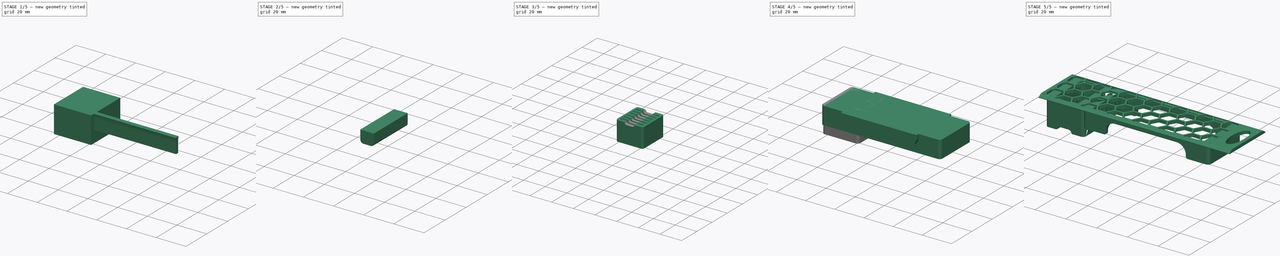
[diagram: build sequence overview — one tinted view per stage of 5, left to right]
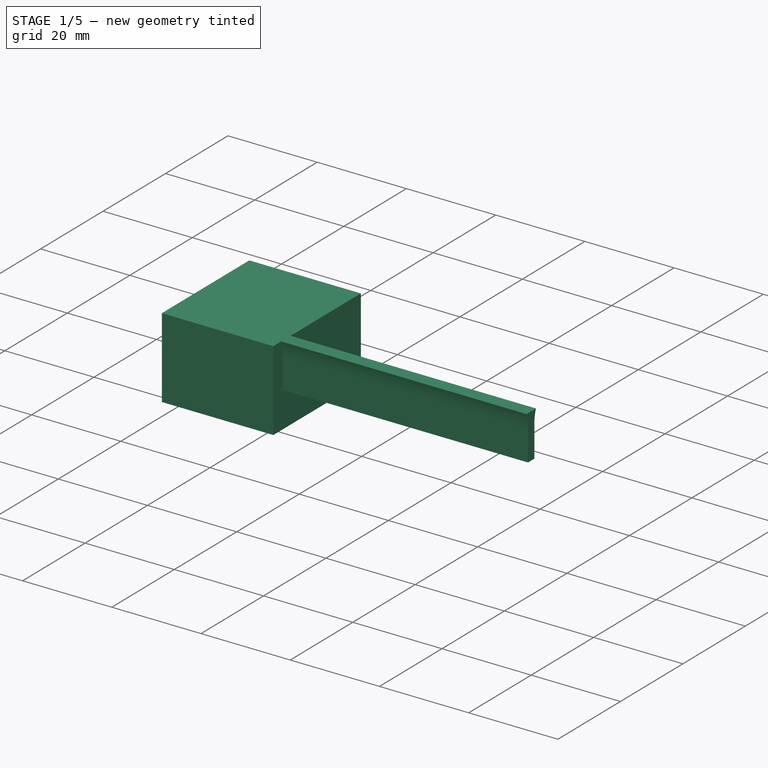
[diagram: stage 1 of 5 — iso view after this stage's code; geometry added in this stage tinted green]
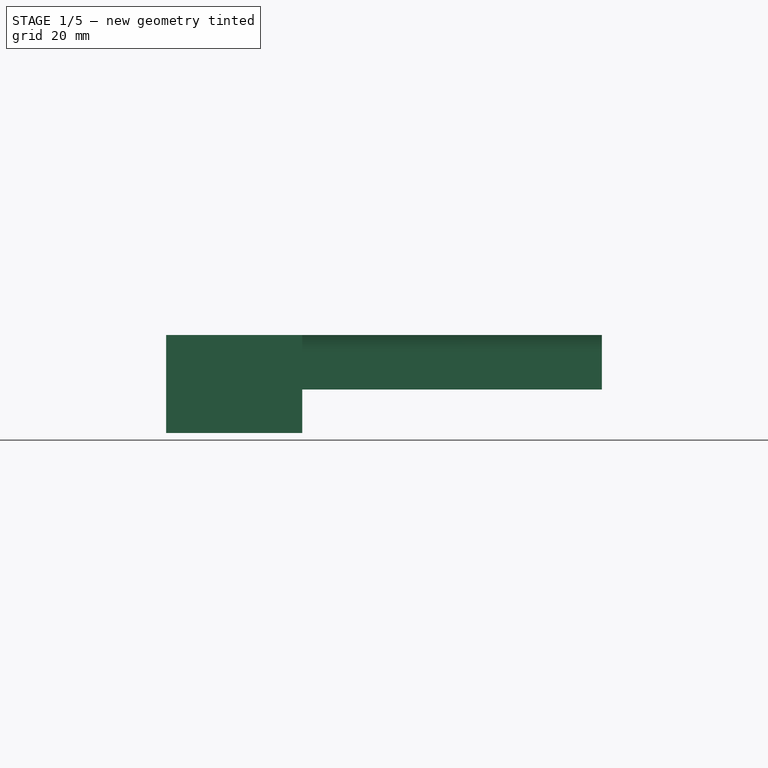
[diagram: stage 1 of 5 — front view after this stage's code; geometry added in this stage tinted green]
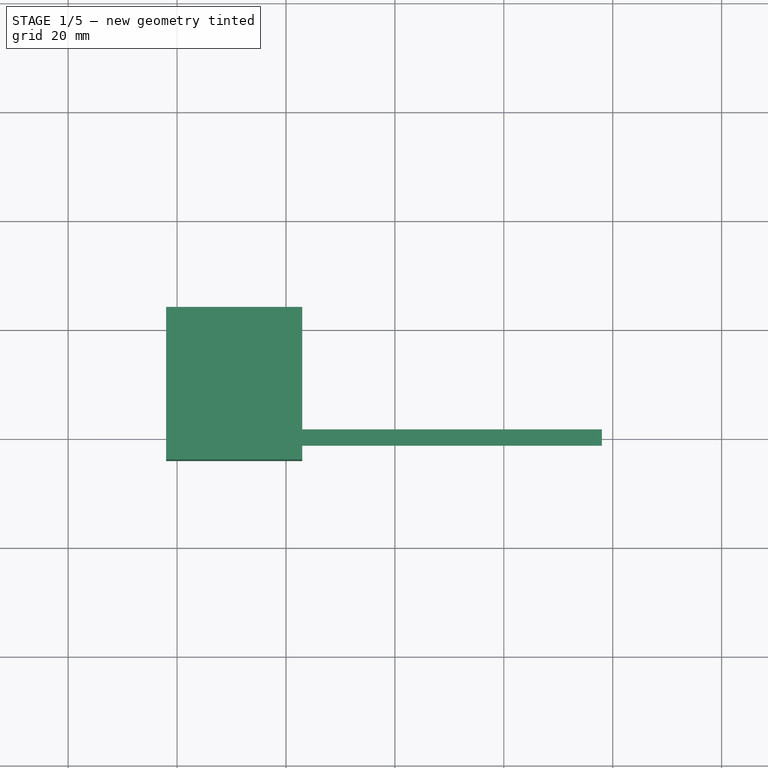
[diagram: stage 1 of 5 — top view after this stage's code; geometry added in this stage tinted green]
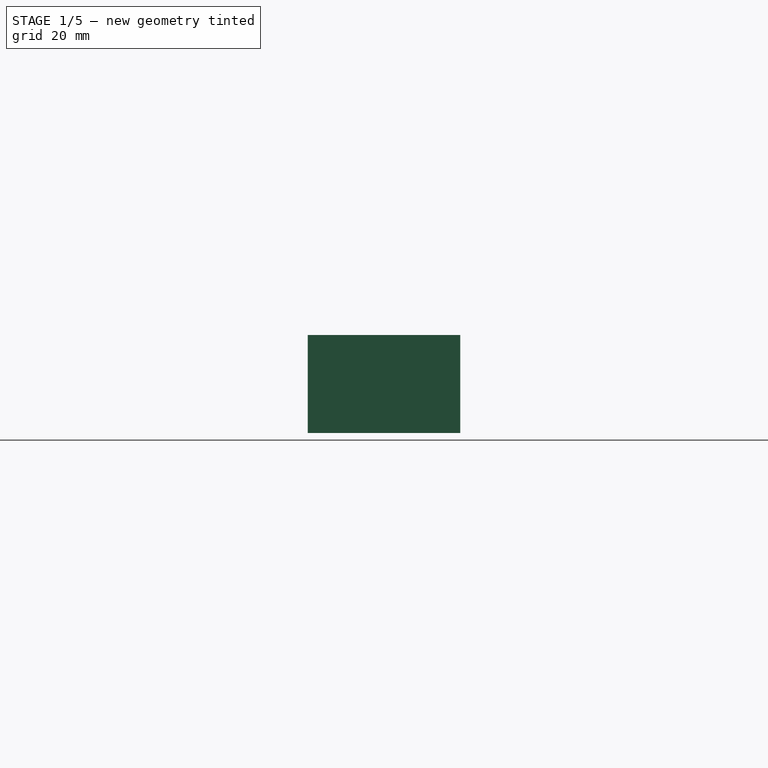
[diagram: stage 1 of 5 — right view after this stage's code; geometry added in this stage tinted green]
FCSTD DOCUMENT  (FreeCAD 0.20R29410 (Git))
Label: slide_dryer_box
License: All rights reserved
LicenseURL: http://en.wikipedia.org/wiki/All_rights_reserved
objects: Part::Box×6, Part::Fillet×6, Part::MultiFuse×3, Sketcher::SketchObject×2, PartDesign::Pad×2, PartDesign::Body×2, Part::FeaturePython×2, Part::Cut×2, App::Part×2, Part::Feature×2, Part::Compound×1
note: 28 computed .brp shape members not serialized (recipe doc carries the construction recipe); baked Part::Feature solids carry a one-line shape summary decoded from their .brp

FEATURE [Sketcher::SketchObject] Sketch  label="slide slot sketch"
  FullyConstrained = true
  MapMode = 5
  Placement = pos=(0,0,0) rot=(0.57735,0.57735,0.57735;2.0944rad)
  Support = -> [YZ_Plane]
  sketch-geometry (6):
    g0: LineSegment StartX=-1 StartY=9 StartZ=0 EndX=-1 EndY=2 EndZ=0
    g1: LineSegment StartX=1 StartY=2 StartZ=0 EndX=1 EndY=9 EndZ=0
    g2: LineSegment StartX=-1 StartY=2 StartZ=0 EndX=1 EndY=2 EndZ=0
    g3: LineSegment StartX=-1.5 StartY=12 StartZ=0 EndX=1.5 EndY=12 EndZ=0
    g4: ArcOfCircle CenterX=-10.25 CenterY=9 CenterZ=0 NormalX=0 NormalY=0 NormalZ=1 AngleXU=0 Radius=9.25 StartAngle=-1.8e-15 EndAngle=0.330297
    g5: ArcOfCircle CenterX=10.25 CenterY=9 CenterZ=0 NormalX=0 NormalY=0 NormalZ=1 AngleXU=0 Radius=9.25 StartAngle=2.8113 EndAngle=3.14159
  constraints (15):
    c: Vertical(g0)
    c: Coincident(g2,g0)
    c: Coincident(g2,g1)
    c: Coincident(g4,g3)
    c: Coincident(g5,g3)
    c: Tangent(g5,g1) = 1.5708
    c: Tangent(g4,g0) = 1.5708
    c: Symmetric(g3,g3,g-2)
    c: Symmetric(g1,g0,g-2)
    c: Symmetric(g1,g0,g-2)
    c: DistanceX(g2,g2) = 2
    c: DistanceY(g0,g3) = 10  'slide_slot_height'
    c: DistanceY(g-1,g1) = 2  'slide_slot_shift_up'
    c: DistanceX(g3,g3) = 3
    c: DistanceY(g0,g0) = 7
FEATURE [PartDesign::Pad] Pad  label="slide slot pad"
  Direction = (1,-2e-16,3e-16)
  Length = 78
  Length2 = 10
  Placement = pos=(0,0,0) rot=(0.57735,0.57735,0.57735;2.0944rad)
  Profile = -> Sketch
  ReferenceAxis = -> Sketch [N_Axis]
  Type = 0
FEATURE [Part::Box] Box003  label="cover external cube"
  AttacherType = Attacher::AttachEngine3D
  Height = 18
  Length = 25
  Placement = pos=(-2,-4,-6) rot=(0,0,1;0rad)
  Width = 28
  expr: .Placement.Base.z = -6
  expr: Height = <<cover slot sketch>>.Constraints.slide_slot_height + <<cover slot sketch>>.Constraints.slide_slot_shift_up + 6mm
  expr: Length = <<cover slot pad>>.Length + 4mm
  expr: Width = <<cover slot array>>.NumberY * <<cover slot array>>.IntervalY.y + 4mm
FEATURE [Sketcher::SketchObject] Sketch001  label="cover slot sketch"
  FullyConstrained = true
  MapMode = 5
  Placement = pos=(0,0,0) rot=(0.57735,0.57735,0.57735;2.0944rad)
  Support = -> [YZ_Plane001]
  sketch-geometry (6):
    g0: LineSegment StartX=-0.7 StartY=9 StartZ=0 EndX=-0.7 EndY=2 EndZ=0
    g1: LineSegment StartX=0.7 StartY=2 StartZ=0 EndX=0.7 EndY=9 EndZ=0
    g2: LineSegment StartX=-0.7 StartY=2 StartZ=0 EndX=0.7 EndY=2 EndZ=0
    g3: LineSegment StartX=-1 StartY=12 StartZ=0 EndX=1 EndY=12 EndZ=0
    g4: ArcOfCircle CenterX=-15.85 CenterY=9 CenterZ=0 NormalX=0 NormalY=0 NormalZ=1 AngleXU=0 Radius=15.15 StartAngle=1e-16 EndAngle=0.199337
    g5: ArcOfCircle CenterX=15.85 CenterY=9 CenterZ=0 NormalX=0 NormalY=0 NormalZ=1 AngleXU=0 Radius=15.15 StartAngle=2.94226 EndAngle=3.14159
  constraints (15):
    c: Vertical(g0)
    c: Coincident(g2,g0)
    c: Coincident(g2,g1)
    c: Coincident(g4,g3)
    c: Coincident(g5,g3)
    c: Tangent(g5,g1) = 1.5708
    c: Tangent(g4,g0) = 1.5708
    c: Symmetric(g3,g3,g-2)
    c: Symmetric(g1,g0,g-2)
    c: Symmetric(g1,g0,g-2)
    c: DistanceX(g2,g2) = 1.4
    c: DistanceY(g0,g3) = 10  'slide_slot_height'
    c: DistanceY(g-1,g1) = 2  'slide_slot_shift_up'
    c: DistanceX(g3,g3) = 2
    c: DistanceY(g0,g0) = 7
FEATURE [PartDesign::Pad] Pad001  label="cover slot pad"
  Direction = (1,-2e-16,3e-16)
  Length = 21
  Length2 = 10
  Placement = pos=(0,0,0) rot=(0.57735,0.57735,0.57735;2.0944rad)
  Profile = -> Sketch001
  ReferenceAxis = -> Sketch001 [N_Axis]
  Type = 0
FEATURE [PartDesign::Body] Body001  label="slide slot body001"
  Group = -> [Sketch001,Pad001]
  Origin = -> Origin001
  Tip = -> Pad001
FEATURE [Part::FeaturePython] Array001  label="cover slot array"  # Draft array (typed FeaturePython)
  AlwaysSyncPlacement = false
  Angle = 360
  ArrayType = 0
  Axis = (0,0,1)
  Base = -> Body001
  Center = (0,0,0)
  Count = 6
  ExpandArray = false
  Fuse = false
  IntervalAxis = (0,0,0)
  IntervalX = (100,0,0)
  IntervalY = (0,4,0)
  IntervalZ = (0,0,100)
  NumberCircles = 3
  NumberPolar = 5
  NumberX = 1
  NumberY = 6
  NumberZ = 1
  PlacementList = 6 placements: arithmetic series from (0,0,0) step (0,4,0) to (0,20,0)
  RadialDistance = 50
  ScaleList = (6) [(1,1,1),(1,1,1),(1,1,1),(1,1,1),(1,1,1),(1,1,1)]
  Symmetry = 1
  TangentialDistance = 25
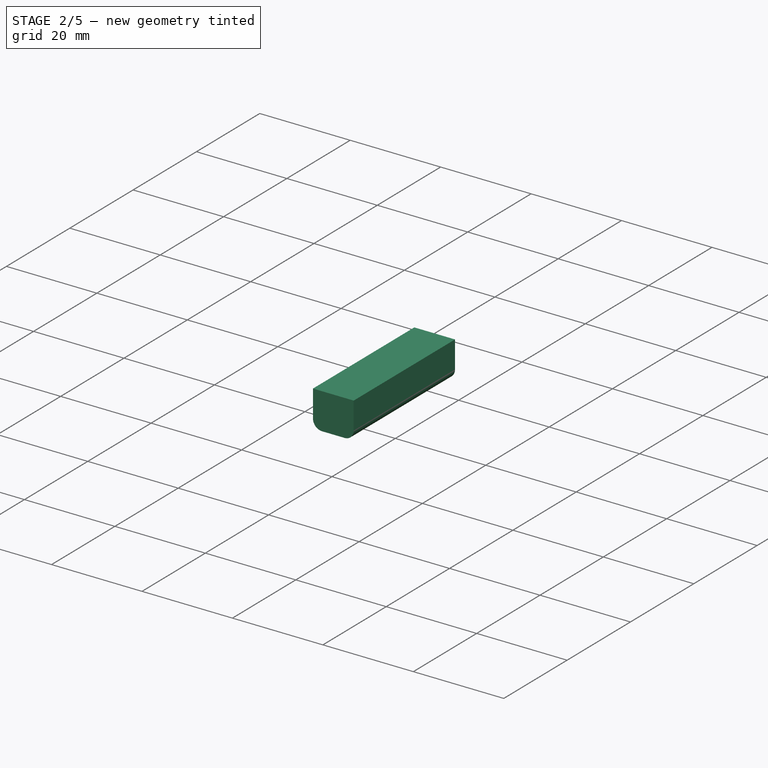
[diagram: stage 2 of 5 — iso view after this stage's code; geometry added in this stage tinted green]
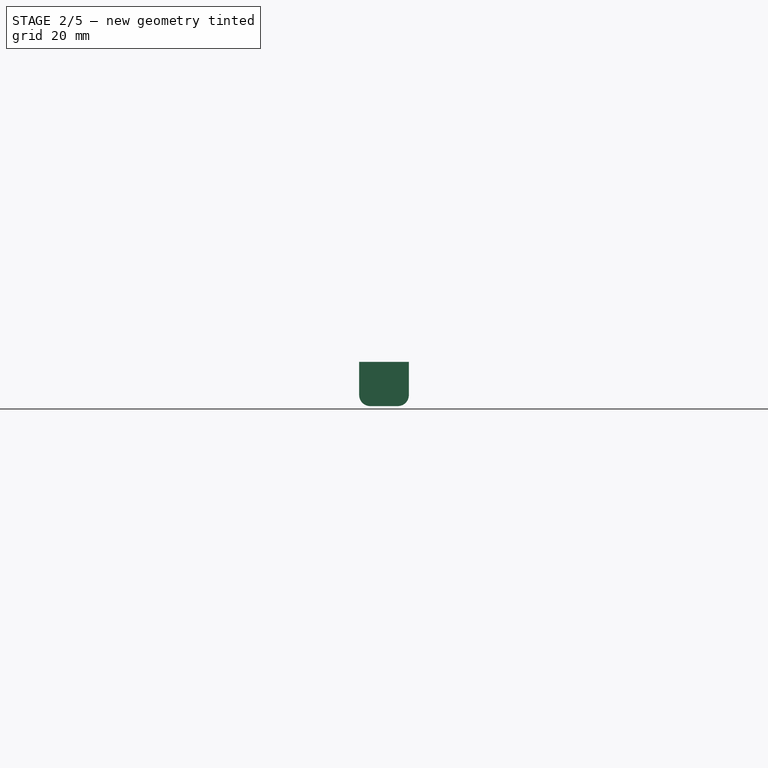
[diagram: stage 2 of 5 — front view after this stage's code; geometry added in this stage tinted green]
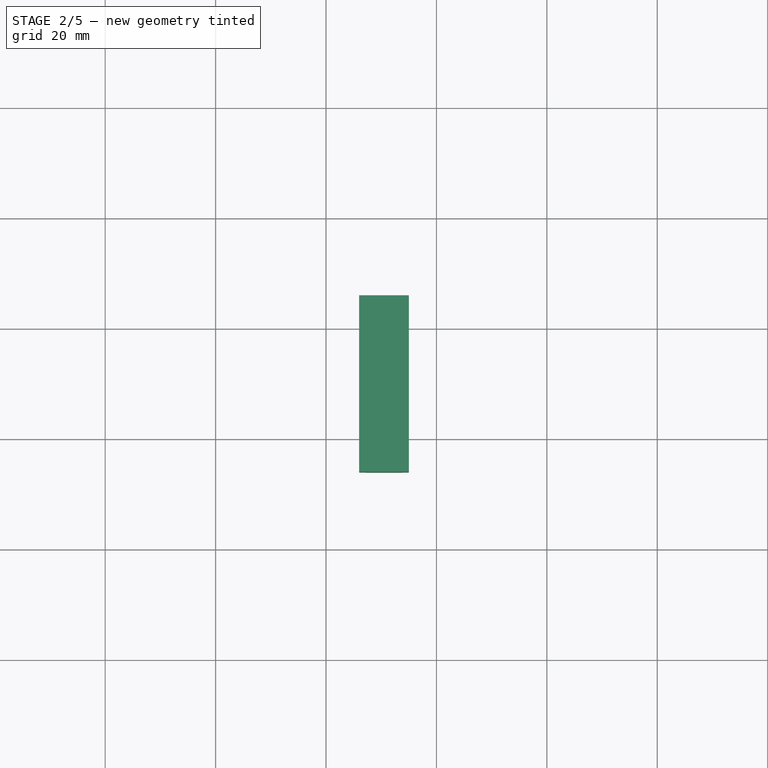
[diagram: stage 2 of 5 — top view after this stage's code; geometry added in this stage tinted green]
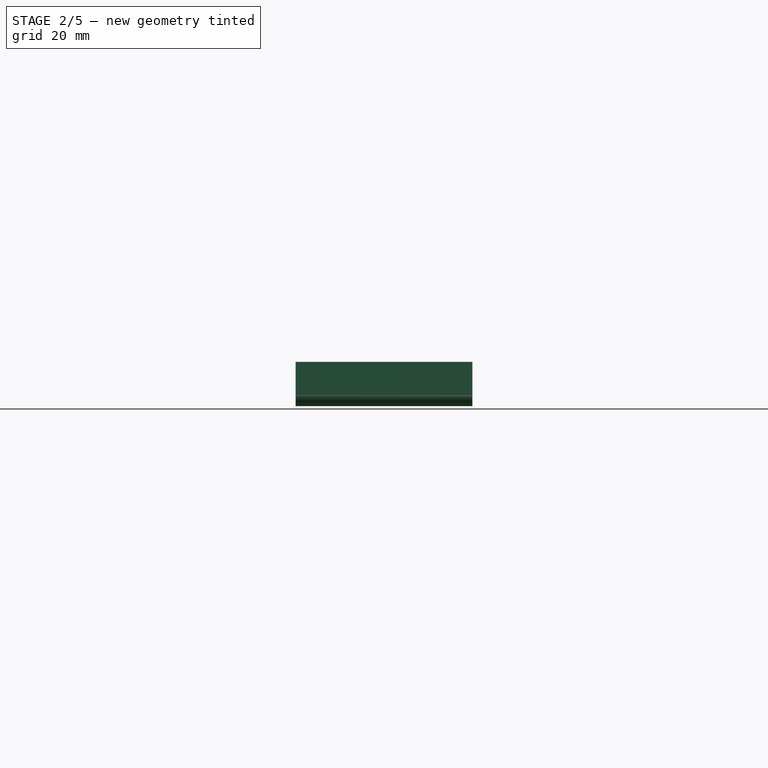
[diagram: stage 2 of 5 — right view after this stage's code; geometry added in this stage tinted green]
FEATURE [PartDesign::Body] Body  label="slide slot body"
  Group = -> [Sketch,Pad]
  Origin = -> Origin
  Tip = -> Pad
FEATURE [Part::FeaturePython] Array  label="slide slot array"  # Draft array (typed FeaturePython)
  AlwaysSyncPlacement = false
  Angle = 360
  ArrayType = 0
  Axis = (0,0,1)
  Base = -> Body
  Center = (0,0,0)
  Count = 6
  ExpandArray = false
  Fuse = false
  IntervalAxis = (0,0,0)
  IntervalX = (100,0,0)
  IntervalY = (0,4,0)
  IntervalZ = (0,0,100)
  NumberCircles = 3
  NumberPolar = 5
  NumberX = 1
  NumberY = 6
  NumberZ = 1
  PlacementList = 6 placements: arithmetic series from (0,0,0) step (0,4,0) to (0,20,0)
  RadialDistance = 50
  ScaleList = (6) [(1,1,1),(1,1,1),(1,1,1),(1,1,1),(1,1,1),(1,1,1)]
  Symmetry = 1
  TangentialDistance = 25
FEATURE [Part::Box] Box  label="slide external cube"
  AttacherType = Attacher::AttachEngine3D
  Height = 12
  Length = 82
  Placement = pos=(-2,-5,0) rot=(0,0,1;0rad)
  Width = 30
  expr: .Placement.Base.y = -5mm
  expr: Height = <<slide slot sketch>>.Constraints.slide_slot_height + <<slide slot sketch>>.Constraints.slide_slot_shift_up
  expr: Length = <<slide slot pad>>.Length + 4mm
  expr: Width = <<slide slot array>>.NumberY * <<slide slot array>>.IntervalY.y + 6mm
FEATURE [Part::Box] Box004  label="cover internal cube"
  AttacherType = Attacher::AttachEngine3D
  Height = 12
  Length = 15
  Placement = pos=(3,-3,-6) rot=(0,0,1;0rad)
  Width = 26
  expr: .Placement.Base.z = <<cover external cube>>.Placement.Base.z
  expr: Height = <<slide external cube>>.Height
  expr: Length = <<cover slot pad>>.Length - abs(.Placement.Base.x) * 2
  expr: Width = (<<cover slot array>>.NumberY - 1) * <<cover slot array>>.IntervalY.y + abs(.Placement.Base.y) * 2
FEATURE [Part::Box] Box005  label="middle extract cube001"
  AttacherType = Attacher::AttachEngine3D
  Height = 8
  Length = 9
  Placement = pos=(6,-6,10) rot=(0,0,1;0rad)
  Width = 32
  expr: .Placement.Base.x = <<cover internal cube>>.Placement.Base.x + 3mm
  expr: .Placement.Base.y = <<cover external cube>>.Placement.Base.y - 2mm
  expr: .Placement.Base.z = <<cover external cube>>.Height - Height
  expr: Length = <<cover internal cube>>.Length - 6mm
  expr: Width = <<cover external cube>>.Width + 4mm
FEATURE [Part::Fillet] Fillet004  label="middle extract cube fillet001"
  Base = -> Box005
  Edges = 2 edges r=2: [Edge4,Edge8]
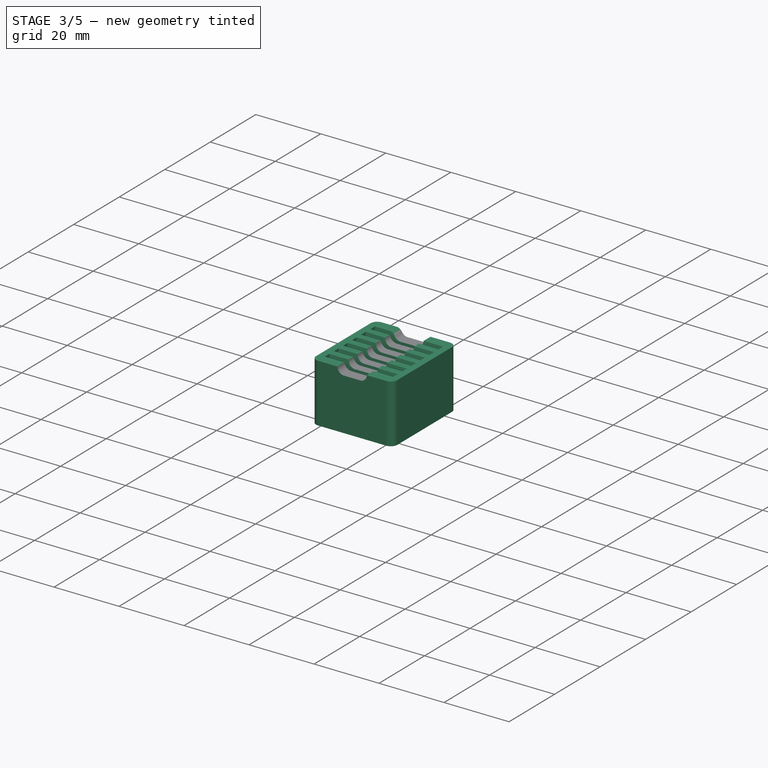
[diagram: stage 3 of 5 — iso view after this stage's code; geometry added in this stage tinted green]
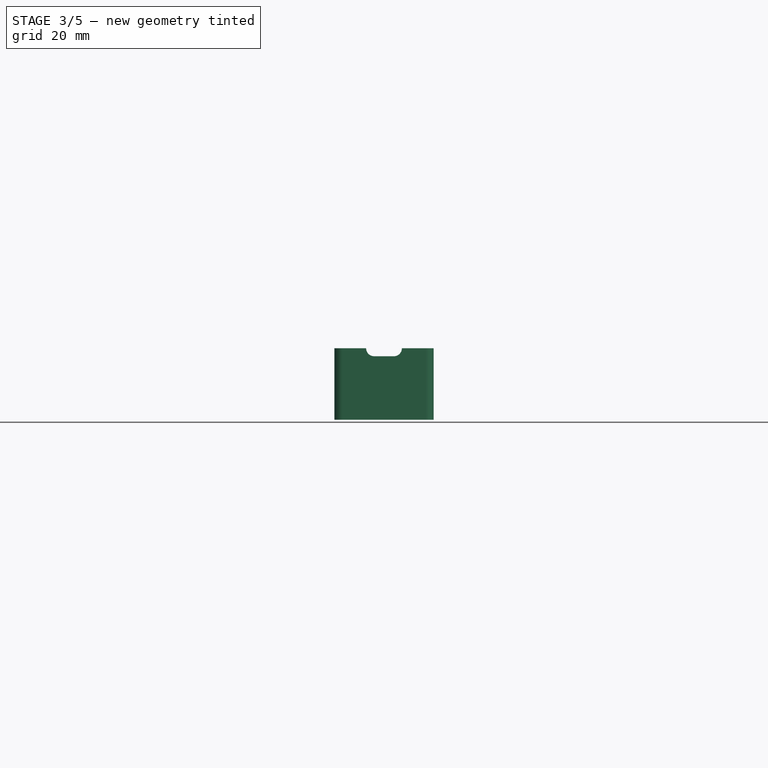
[diagram: stage 3 of 5 — front view after this stage's code; geometry added in this stage tinted green]
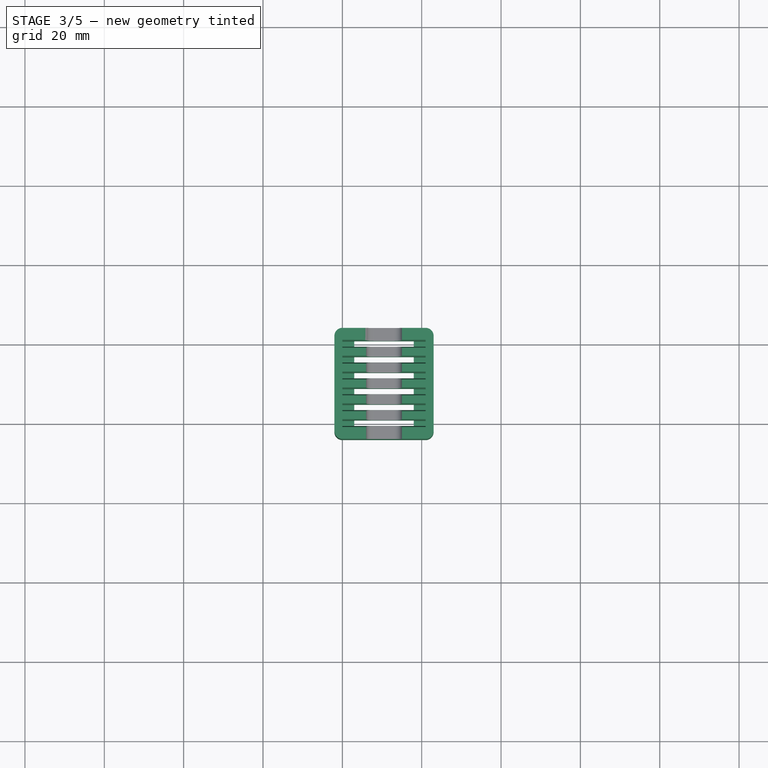
[diagram: stage 3 of 5 — top view after this stage's code; geometry added in this stage tinted green]
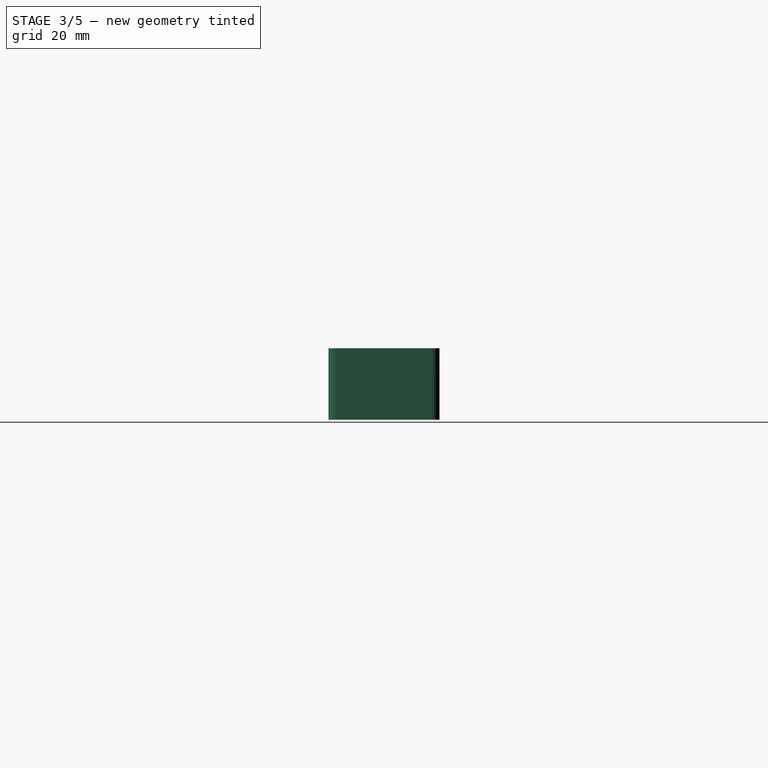
[diagram: stage 3 of 5 — right view after this stage's code; geometry added in this stage tinted green]
FEATURE [Part::Fillet] Fillet003  label="cover external cube fillet"
  Base = -> Box003
  Edges = 4 edges r=2: [Edge1,Edge3,Edge5,Edge7]
FEATURE [Part::MultiFuse] Fusion001  label="extract fusion001"
  Shapes = -> [Array001,Box004,Fillet004]
FEATURE [Part::Cut] Cut001  label="cover glass box cut"
  Base = -> Fillet003
  Tool = -> Fusion001
FEATURE [Part::Fillet] Fillet005  label="cover glass box fillet"
  Base = -> Cut001
  Edges = 4 edges r=2: [Edge7,Edge35,Edge197,Edge216]
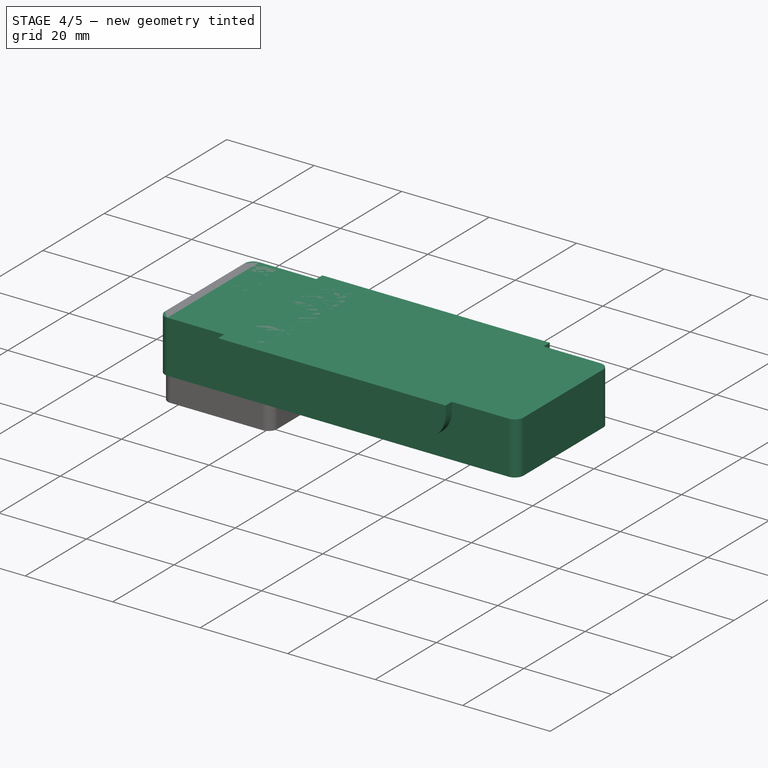
[diagram: stage 4 of 5 — iso view after this stage's code; geometry added in this stage tinted green]
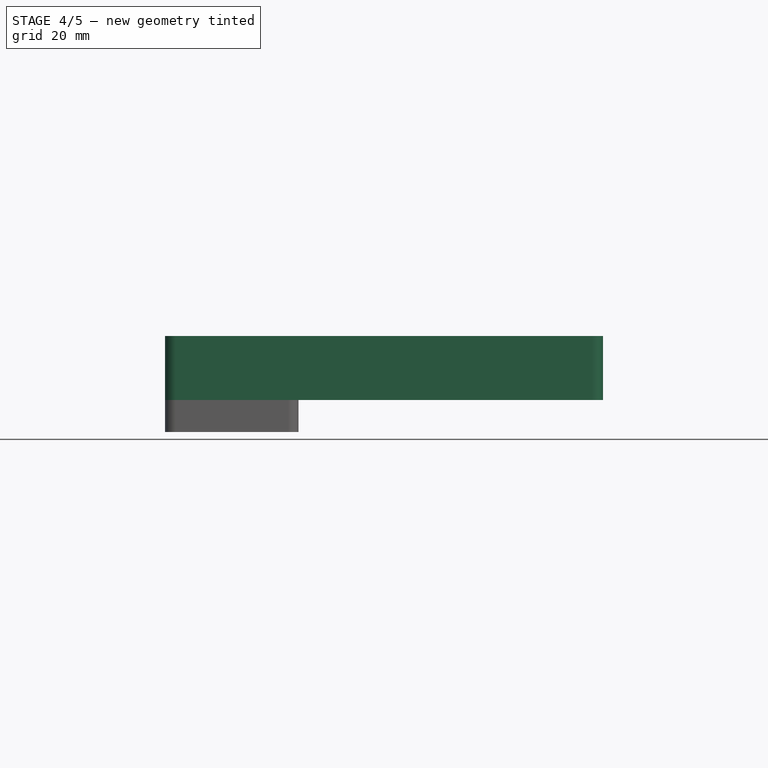
[diagram: stage 4 of 5 — front view after this stage's code; geometry added in this stage tinted green]
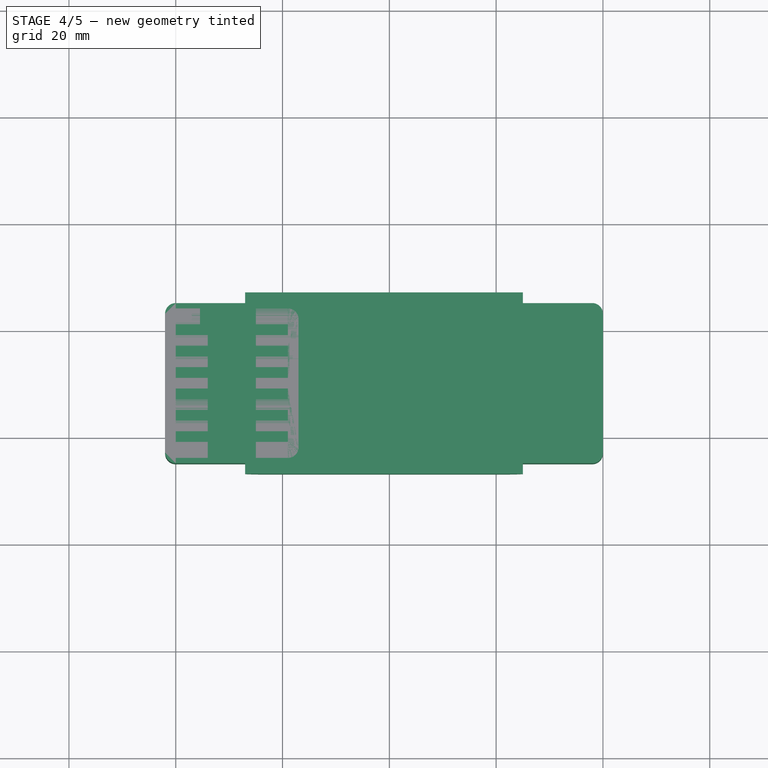
[diagram: stage 4 of 5 — top view after this stage's code; geometry added in this stage tinted green]
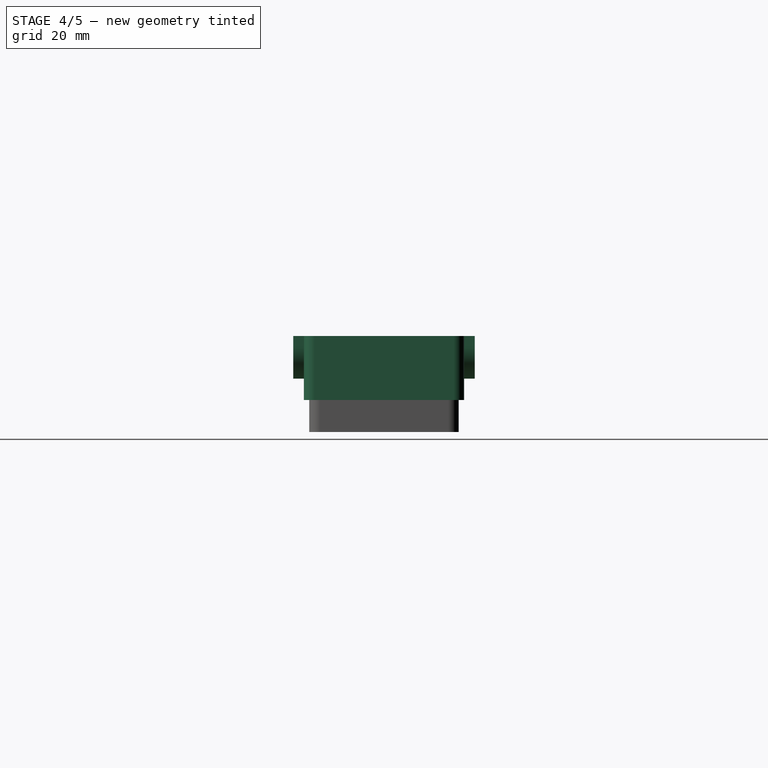
[diagram: stage 4 of 5 — right view after this stage's code; geometry added in this stage tinted green]
FEATURE [Part::Box] Box001  label="slide internal cube"
  AttacherType = Attacher::AttachEngine3D
  Height = 12
  Length = 72
  Placement = pos=(3,-3,0) rot=(0,0,1;0rad)
  Width = 26
  expr: Height = <<slide slot sketch>>.Constraints.slide_slot_height + <<slide slot sketch>>.Constraints.slide_slot_shift_up
  expr: Length = <<slide slot pad>>.Length - abs(.Placement.Base.x) * 2
  expr: Width = (<<slide slot array>>.NumberY - 1) * <<slide slot array>>.IntervalY.y + abs(.Placement.Base.y) * 2
FEATURE [Part::Fillet] Fillet  label="slide external cube fillet"
  Base = -> Box
  Edges = 4 edges r=2: [Edge1,Edge3,Edge5,Edge7]
FEATURE [Part::Box] Box002  label="middle extract cube"
  AttacherType = Attacher::AttachEngine3D
  Height = 8
  Length = 52
  Placement = pos=(13,-7,4) rot=(0,0,1;0rad)
  Width = 34
  expr: .Placement.Base.x = <<slide internal cube>>.Placement.Base.x + 10mm
  expr: .Placement.Base.y = <<slide external cube>>.Placement.Base.y - 2mm
  expr: .Placement.Base.z = <<slide external cube>>.Height - Height
  expr: Length = <<slide internal cube>>.Length - 20mm
  expr: Width = <<slide external cube>>.Width + 4mm
FEATURE [Part::Fillet] Fillet001  label="middle extract cube fillet"
  Base = -> Box002
  Edges = 2 edges r=6: [Edge4,Edge8]
FEATURE [Part::MultiFuse] Fusion  label="extract fusion"
  Shapes = -> [Array,Box001,Fillet001]
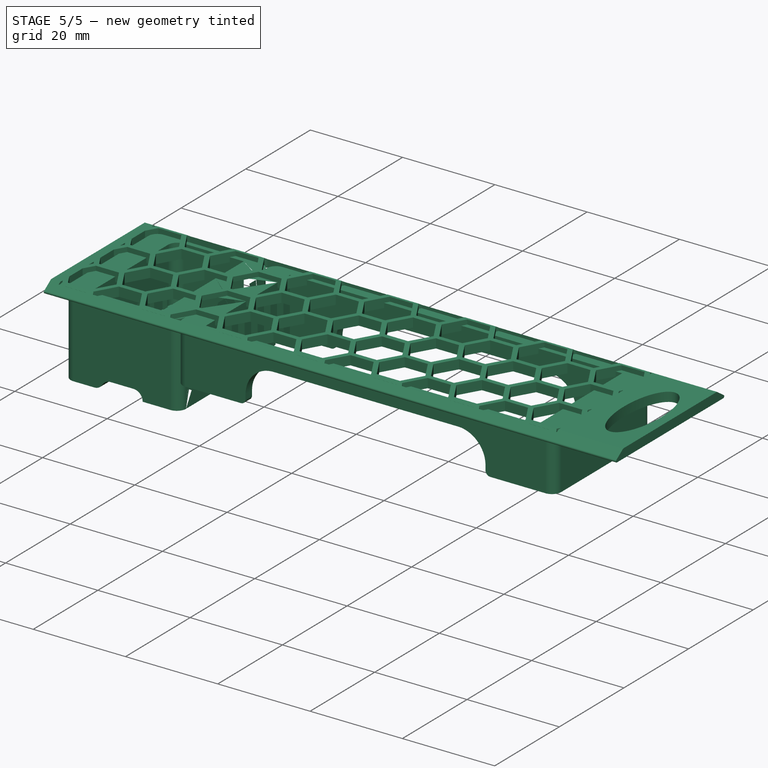
[diagram: stage 5 of 5 — iso view after this stage's code; geometry added in this stage tinted green]
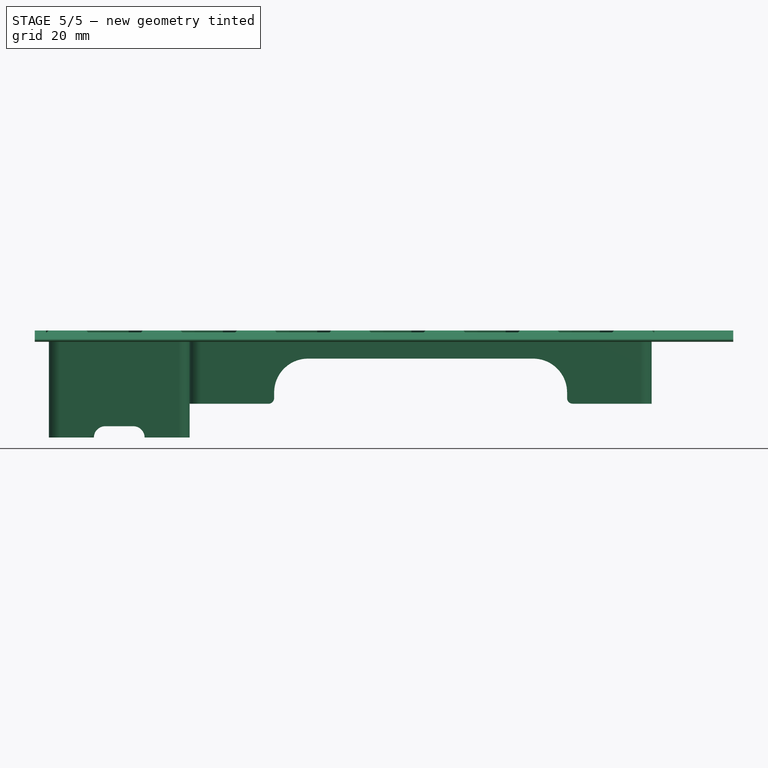
[diagram: stage 5 of 5 — front view after this stage's code; geometry added in this stage tinted green]
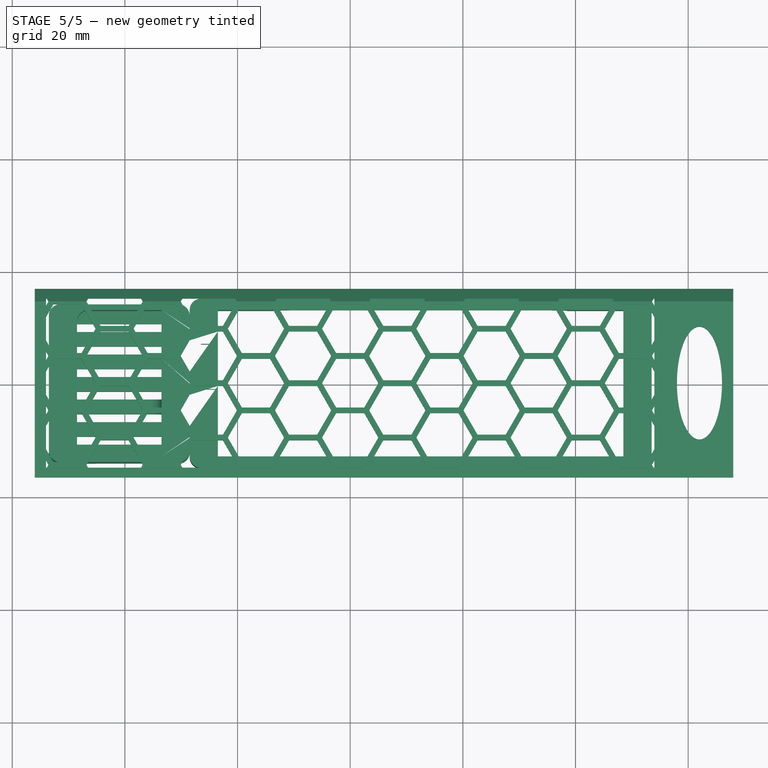
[diagram: stage 5 of 5 — top view after this stage's code; geometry added in this stage tinted green]
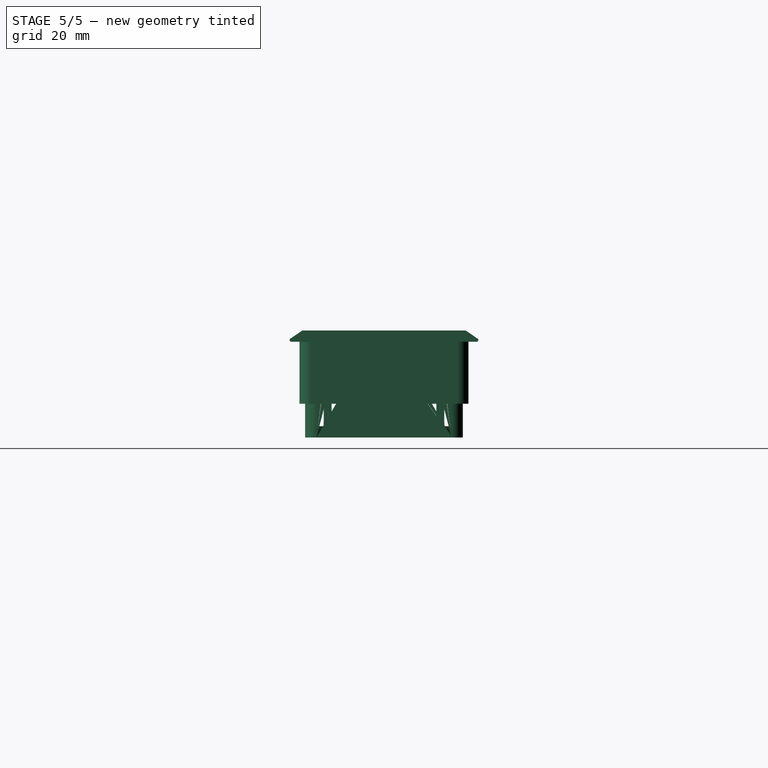
[diagram: stage 5 of 5 — right view after this stage's code; geometry added in this stage tinted green]
FEATURE [Part::Cut] Cut  label="slide box cut"
  Base = -> Fillet
  Tool = -> Fusion
FEATURE [Part::Fillet] Fillet002  label="slide box fillet"
  Base = -> Cut
  Edges = 4 edges r=1: [Edge7,Edge35,Edge197,Edge216]
FEATURE [App::Part] Part  label="slide container part"
  Group = -> [Fillet002]
  Origin = -> Origin002
FEATURE [App::Part] Part001  label="cover container part"
  Group = -> [Fillet005]
  Origin = -> Origin003
  Placement = pos=(-25,0,6) rot=(0,0,1;0rad)
FEATURE [Part::Compound] Compound  label="container compound"
  Links = -> [Part001,Part]
  Placement = pos=(-26.5,10,36.5) rot=(1,0,0;3.14159rad)
FEATURE [Part::Feature] Compound003_solid  label="lid compound (Solid)"
  shape: bbox 124 x 33.51 x 2 mm, 369 faces (baked)
FEATURE [Part::MultiFuse] Fusion002  label="dryer box fusion"
  Shapes = -> [Compound003_solid,Compound]
FEATURE [Part::Feature] Fusion009  label="box body fusion001"
  Placement = pos=(0,0,3) rot=(0,0,1;0rad)
  shape: bbox 118 x 40 x 36 mm, 521 faces (baked)
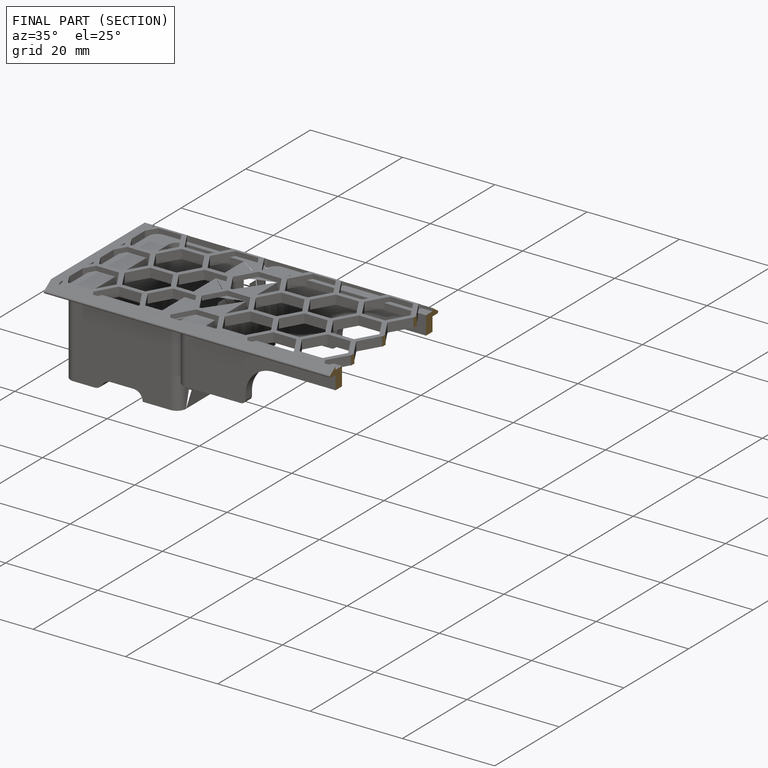
[diagram: finished part — half-section view (interior)]
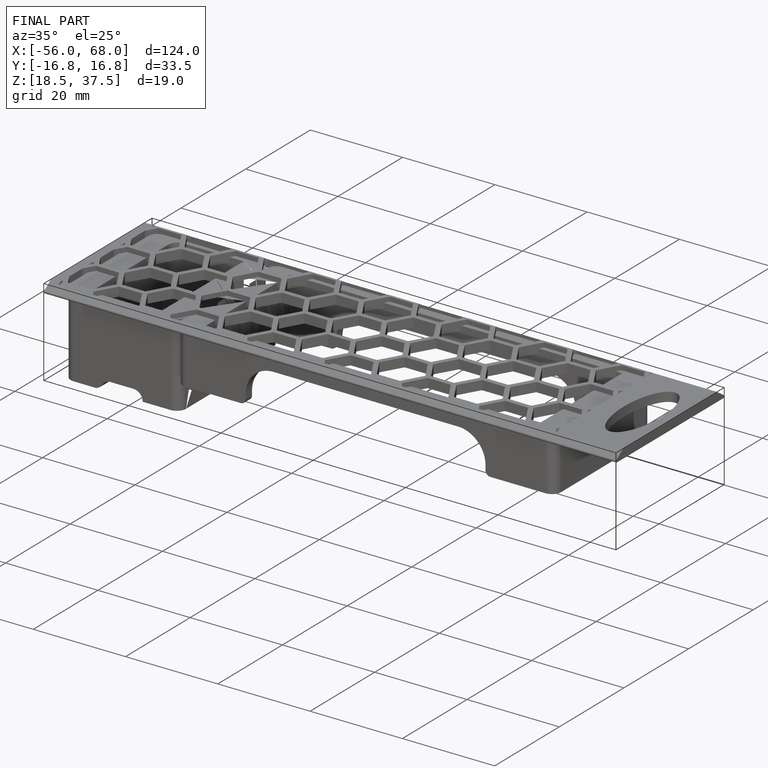
[diagram: finished part — iso view with bounding-box wireframe]
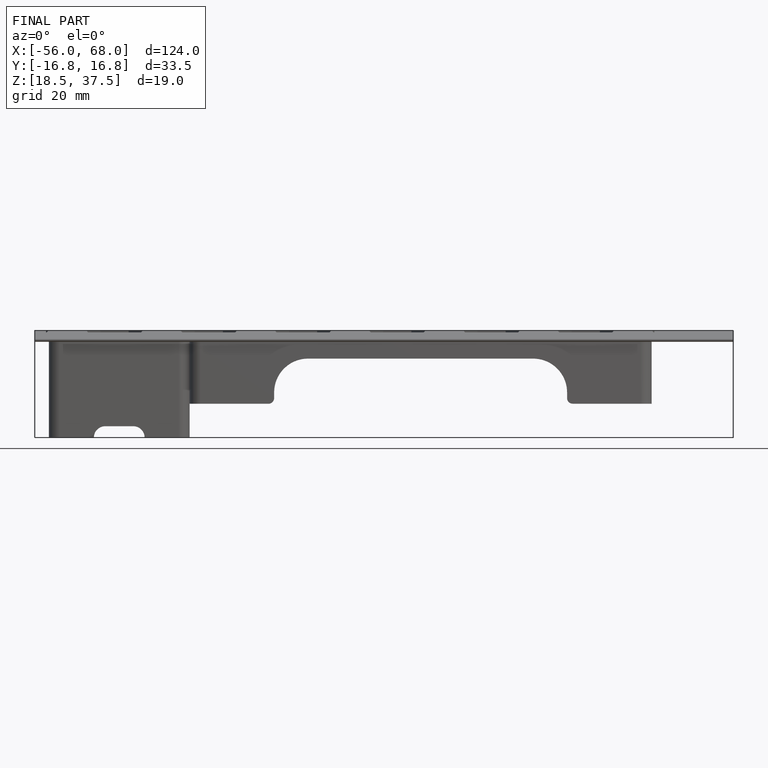
[diagram: finished part — front view with bounding-box wireframe]
